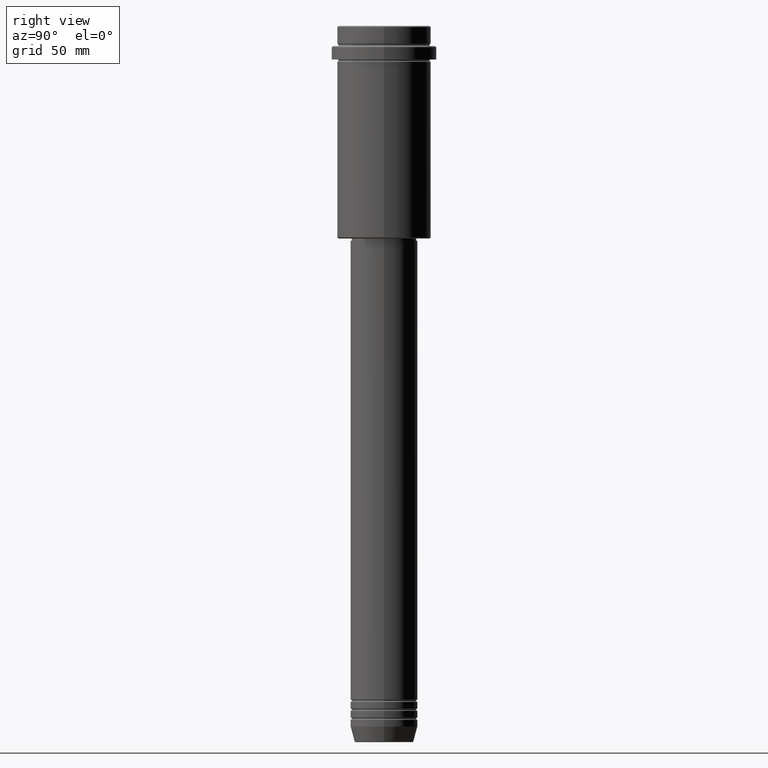
[diagram: clean part render]
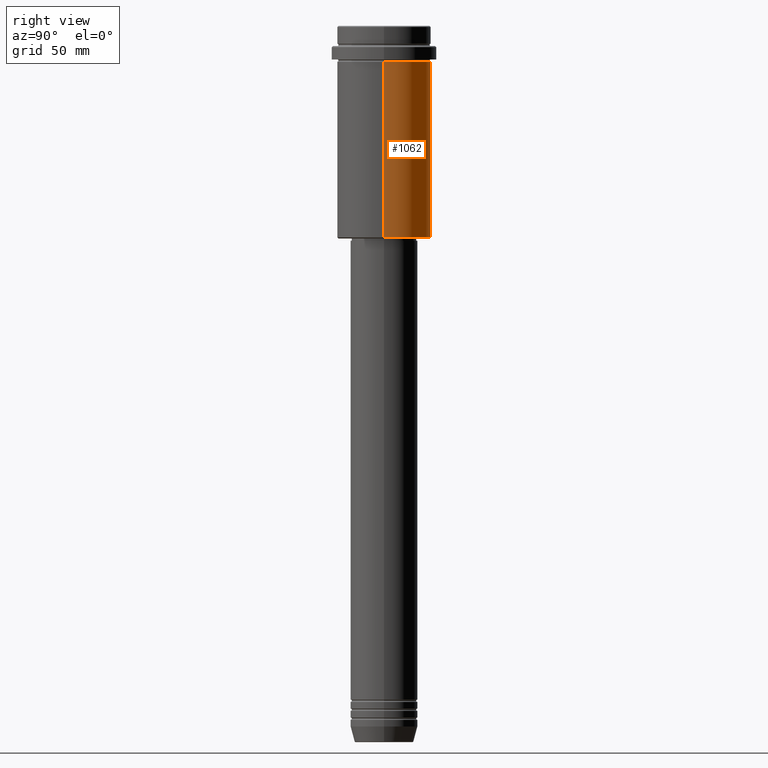
[diagram: same view with one face highlighted and labeled with its STEP entity id]
A machine part, right view. The second image highlights one B-rep face of the part: STEP entity #1062.
In plain terms, the highlighted cylindrical surface (partial cylindrical patch) has radius 21 mm, axis along (-0, -0, 1).
Its self-contained STEP definition (entity closure, byte-faithful):
#55 = EDGE_CURVE ( 'NONE', #506, #1327, #929, .T. ) ;
#75 = FACE_OUTER_BOUND ( 'NONE', #1314, .T. ) ;
#132 = AXIS2_PLACEMENT_3D ( 'NONE', #639, #734, #613 ) ;
#236 = EDGE_CURVE ( 'NONE', #1327, #739, #629, .T. ) ;
#262 = CARTESIAN_POINT ( 'NONE',  ( 21.00000000000000000, 0.000000000000000000, 0.000000000000000000 ) ) ;
#287 = DIRECTION ( 'NONE',  ( -0.000000000000000000, -0.000000000000000000, 1.000000000000000000 ) ) ;
#404 = DIRECTION ( 'NONE',  ( 1.000000000000000000, 0.000000000000000000, 0.000000000000000000 ) ) ;
#462 = DIRECTION ( 'NONE',  ( 1.000000000000000000, 0.000000000000000000, 0.000000000000000000 ) ) ;
#506 = VERTEX_POINT ( 'NONE', #1358 ) ;
#552 = DIRECTION ( 'NONE',  ( -0.000000000000000000, -0.000000000000000000, 1.000000000000000000 ) ) ;
#613 = DIRECTION ( 'NONE',  ( -1.000000000000000000, 0.000000000000000000, 0.000000000000000000 ) ) ;
#629 = CIRCLE ( 'NONE', #1320, 21.00000000000000000 ) ;
#639 = CARTESIAN_POINT ( 'NONE',  ( 0.000000000000000000, 0.000000000000000000, -94.49999999999992895 ) ) ;
#700 = CARTESIAN_POINT ( 'NONE',  ( 21.00000000000000000, 0.000000000000000000, -16.00000000000000355 ) ) ;
#734 = DIRECTION ( 'NONE',  ( -0.000000000000000000, -0.000000000000000000, 1.000000000000000000 ) ) ;
#739 = VERTEX_POINT ( 'NONE', #1005 ) ;
#761 = ORIENTED_EDGE ( 'NONE', *, *, #55, .F. ) ;
#841 = VECTOR ( 'NONE', #1045, 1000.000000000000000 ) ;
#872 = ORIENTED_EDGE ( 'NONE', *, *, #881, .T. ) ;
#881 = EDGE_CURVE ( 'NONE', #1210, #739, #1042, .T. ) ;
#917 = DIRECTION ( 'NONE',  ( -0.000000000000000000, -0.000000000000000000, 1.000000000000000000 ) ) ;
#929 = LINE ( 'NONE', #262, #1252 ) ;
#938 = ORIENTED_EDGE ( 'NONE', *, *, #236, .F. ) ;
#991 = CARTESIAN_POINT ( 'NONE',  ( 0.000000000000000000, 0.000000000000000000, -16.00000000000000355 ) ) ;
#999 = EDGE_CURVE ( 'NONE', #506, #1210, #1086, .T. ) ;
#1003 = CARTESIAN_POINT ( 'NONE',  ( -21.00000000000000000, 2.571758278209441661E-15, -94.49999999999992895 ) ) ;
#1005 = CARTESIAN_POINT ( 'NONE',  ( -21.00000000000000000, 2.571758278209441661E-15, -16.00000000000000355 ) ) ;
#1032 = AXIS2_PLACEMENT_3D ( 'NONE', #1394, #287, #404 ) ;
#1042 = LINE ( 'NONE', #1247, #841 ) ;
#1045 = DIRECTION ( 'NONE',  ( -0.000000000000000000, -0.000000000000000000, 1.000000000000000000 ) ) ;
#1062 = ADVANCED_FACE ( 'NONE', ( #75 ), #1181, .T. ) ;
#1086 = CIRCLE ( 'NONE', #132, 21.00000000000000000 ) ;
#1161 = ORIENTED_EDGE ( 'NONE', *, *, #999, .T. ) ;
#1181 = CYLINDRICAL_SURFACE ( 'NONE', #1032, 21.00000000000000000 ) ;
#1210 = VERTEX_POINT ( 'NONE', #1003 ) ;
#1247 = CARTESIAN_POINT ( 'NONE',  ( -21.00000000000000000, 2.571758278209441661E-15, 0.000000000000000000 ) ) ;
#1252 = VECTOR ( 'NONE', #917, 1000.000000000000000 ) ;
#1314 = EDGE_LOOP ( 'NONE', ( #1161, #872, #938, #761 ) ) ;
#1320 = AXIS2_PLACEMENT_3D ( 'NONE', #991, #552, #462 ) ;
#1327 = VERTEX_POINT ( 'NONE', #700 ) ;
#1358 = CARTESIAN_POINT ( 'NONE',  ( 21.00000000000000000, 0.000000000000000000, -94.49999999999992895 ) ) ;
#1394 = CARTESIAN_POINT ( 'NONE',  ( 0.000000000000000000, 0.000000000000000000, 0.000000000000000000 ) ) ;